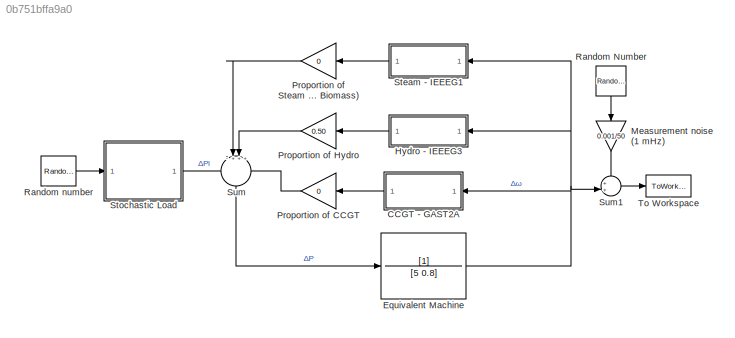
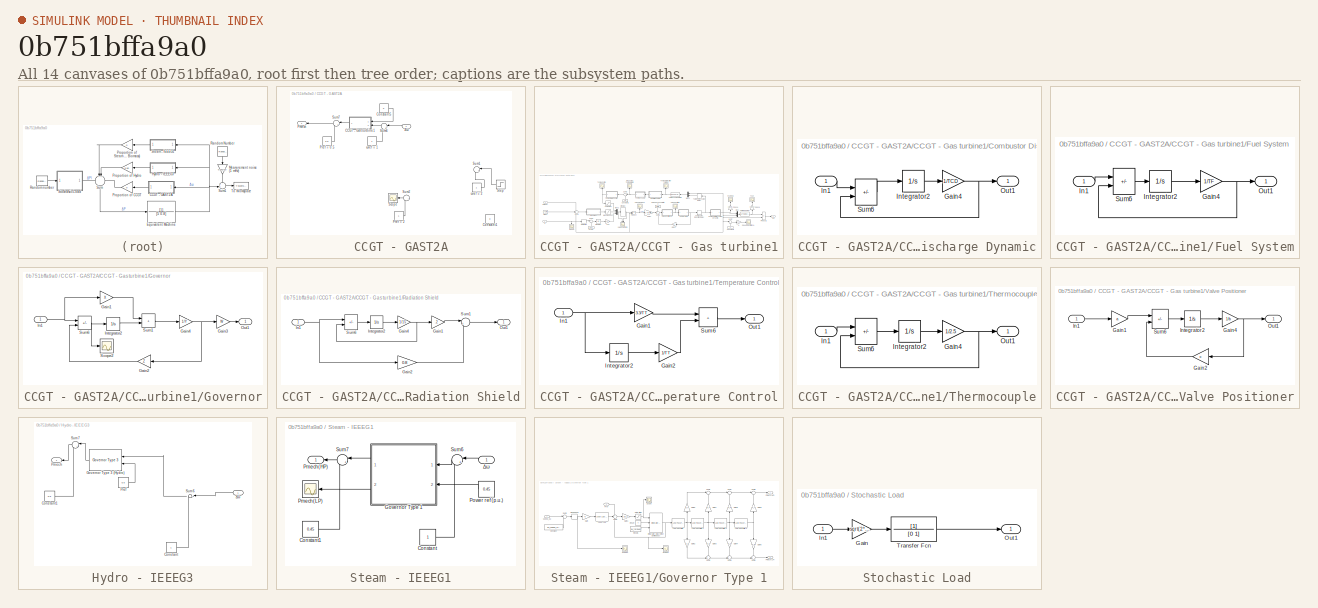
[diagram: thumbnail index - all 14 canvases of the model, root first then tree order]
MODEL slx_0b751bffa9a0
KIND model
CONFIG AbsTol = auto
CONFIG EnableMultiTasking = off
CONFIG FixedStep = auto
CONFIG MaxStep = auto
CONFIG MinStep = auto
CONFIG RelTol = 1e-3
CONFIG SampleTimeConstraint = Unconstrained
CONFIG Solver = VariableStepAuto
CONFIG SolverName = VariableStepAuto
CONFIG StartTime = 0.0
CONFIG StopTime = 3600
BLOCK [SubSystem] CCGT - GAST2A
  Ports = [1, 1]
  RequestExecContextInheritance = off
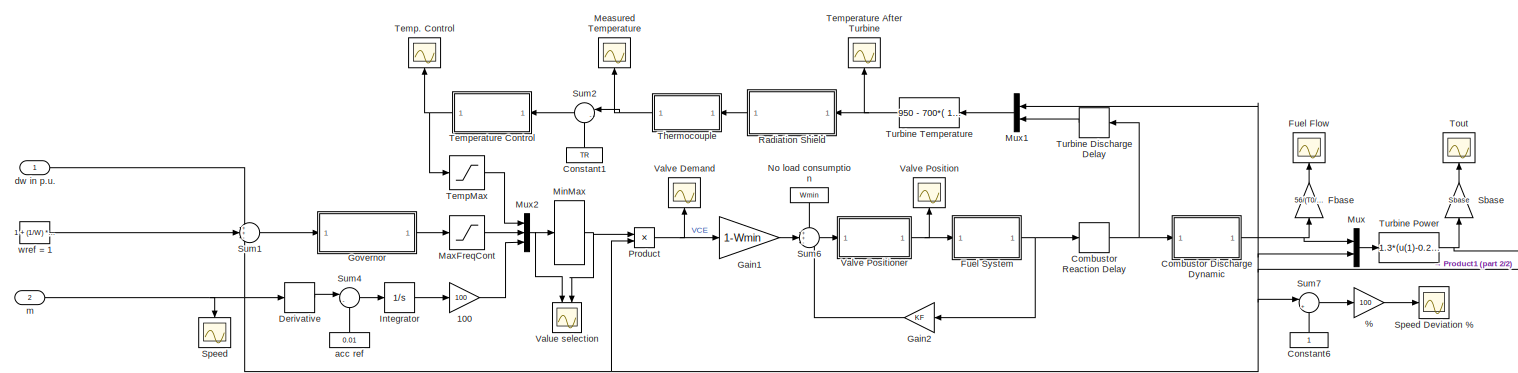
[diagram: CCGT - GAST2A/CCGT - Gas turbine1 - part 1/2, most of the canvas]
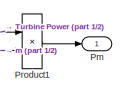
[diagram: CCGT - GAST2A/CCGT - Gas turbine1 - part 2/2, bottom right region]
BLOCK [SubSystem] CCGT - GAST2A/CCGT - Gas turbine1
  NameLocation = top
  Ports = [2, 1]
  RequestExecContextInheritance = off
BLOCK [Gain] CCGT - GAST2A/CCGT - Gas turbine1/%
  Gain = 100
BLOCK [Gain] CCGT - GAST2A/CCGT - Gas turbine1/100
  Gain = 100
BLOCK [SubSystem] CCGT - GAST2A/CCGT - Gas turbine1/Combustor Discharge Dynamic
  Ports = [1, 1]
  RequestExecContextInheritance = off
BLOCK [Gain] CCGT - GAST2A/CCGT - Gas turbine1/Combustor Discharge Dynamic/Gain4
  Gain = 1/TCD
BLOCK [Inport] CCGT - GAST2A/CCGT - Gas turbine1/Combustor Discharge Dynamic/In1
BLOCK [Integrator] CCGT - GAST2A/CCGT - Gas turbine1/Combustor Discharge Dynamic/Integrator2
  InitialCondition = TCD*(T0/1.3+0.23)
  Ports = [1, 1]
BLOCK [Outport] CCGT - GAST2A/CCGT - Gas turbine1/Combustor Discharge Dynamic/Out1
BLOCK [Sum] CCGT - GAST2A/CCGT - Gas turbine1/Combustor Discharge Dynamic/Sum6
  IconShape = rectangular
  Inputs = |+-
  Ports = [2, 1]
BLOCK [TransportDelay] CCGT - GAST2A/CCGT - Gas turbine1/Combustor Reaction Delay
  DelayTime = ECR
  InitialOutput = T0/1.3+0.23
  Ports = [1, 1]
BLOCK [Constant] CCGT - GAST2A/CCGT - Gas turbine1/Constant1
  NameLocation = right
  Value = TR
BLOCK [Constant] CCGT - GAST2A/CCGT - Gas turbine1/Constant6
  NameLocation = right
BLOCK [Derivative] CCGT - GAST2A/CCGT - Gas turbine1/Derivative
BLOCK [Gain] CCGT - GAST2A/CCGT - Gas turbine1/Fbase
  Gain = 56/(T0/1.3+0.23)
  NameLocation = right
BLOCK [Scope] CCGT - GAST2A/CCGT - Gas turbine1/Fuel Flow
  Floating = off
  NameLocation = right
  NumInputPorts = 1
  Ports = [1]
  ScopeSpecificationString = Simulink.scopes.TimeScopeBlockCfg('CurrentConfiguration', extmgr.ConfigurationSet(extmgr.Configuration('Core','General UI',true),extmgr.Configuration('Core','Source UI',true),extmgr.Configuration('Sources','WiredSimulink',true,'DataLogging',true,'DataLoggingVariableName','Fuel','DataLoggingSaveFormat','Array','DataLoggingDecimation','1','DataLoggingDecimateData',true),extmgr.Configuration('Visuals...<+1647ch>
BLOCK [SubSystem] CCGT - GAST2A/CCGT - Gas turbine1/Fuel System
  Ports = [1, 1]
  RequestExecContextInheritance = off
BLOCK [Gain] CCGT - GAST2A/CCGT - Gas turbine1/Fuel System/Gain4
  Gain = 1/TF
BLOCK [Inport] CCGT - GAST2A/CCGT - Gas turbine1/Fuel System/In1
BLOCK [Integrator] CCGT - GAST2A/CCGT - Gas turbine1/Fuel System/Integrator2
  InitialCondition = TF*(T0/1.3+0.23)
  Ports = [1, 1]
BLOCK [Outport] CCGT - GAST2A/CCGT - Gas turbine1/Fuel System/Out1
BLOCK [Sum] CCGT - GAST2A/CCGT - Gas turbine1/Fuel System/Sum6
  IconShape = rectangular
  Inputs = |+-
  Ports = [2, 1]
BLOCK [Gain] CCGT - GAST2A/CCGT - Gas turbine1/Gain1
  Gain = 1-Wmin
BLOCK [Gain] CCGT - GAST2A/CCGT - Gas turbine1/Gain2
  Gain = KF
  NameLocation = top
BLOCK [SubSystem] CCGT - GAST2A/CCGT - Gas turbine1/Governor
  Ports = [1, 1]
  RequestExecContextInheritance = off
BLOCK [Gain] CCGT - GAST2A/CCGT - Gas turbine1/Governor/Gain1
  Gain = X
BLOCK [Gain] CCGT - GAST2A/CCGT - Gas turbine1/Governor/Gain2
  Gain = Z
  NameLocation = top
BLOCK [Gain] CCGT - GAST2A/CCGT - Gas turbine1/Governor/Gain3
  Gain = W
BLOCK [Gain] CCGT - GAST2A/CCGT - Gas turbine1/Governor/Gain4
  Gain = 1/Y
BLOCK [Inport] CCGT - GAST2A/CCGT - Gas turbine1/Governor/In1
BLOCK [Integrator] CCGT - GAST2A/CCGT - Gas turbine1/Governor/Integrator2
  InitialCondition = (Y-Z*X)*(1/W)*(((T0/1.3+0.23)*(c/a)-Wmin)/(1-Wmin))
  Ports = [1, 1]
BLOCK [Outport] CCGT - GAST2A/CCGT - Gas turbine1/Governor/Out1
BLOCK [Scope] CCGT - GAST2A/CCGT - Gas turbine1/Governor/Scope2
  Floating = off
  NumInputPorts = 1
  Ports = [1]
  ScopeSpecificationString = Simulink.scopes.TimeScopeBlockCfg('CurrentConfiguration', extmgr.ConfigurationSet(extmgr.Configuration('Core','General UI',true),extmgr.Configuration('Core','Source UI',true),extmgr.Configuration('Sources','WiredSimulink',true,'DataLoggingVariableName','ScopeData4','DataLoggingSaveFormat','StructureWithTime','DataLoggingLimitDataPoints',true,'DataLoggingDecimation','1','DataLoggingDecimateData',tr...<+1677ch>
BLOCK [Sum] CCGT - GAST2A/CCGT - Gas turbine1/Governor/Sum1
  IconShape = rectangular
  Ports = [2, 1]
BLOCK [Sum] CCGT - GAST2A/CCGT - Gas turbine1/Governor/Sum6
  IconShape = rectangular
  Inputs = +-
  Ports = [2, 1]
BLOCK [Integrator] CCGT - GAST2A/CCGT - Gas turbine1/Integrator
  InitialCondition = 1
  Ports = [1, 1]
BLOCK [Saturate] CCGT - GAST2A/CCGT - Gas turbine1/MaxFreqCont
  LowerLimit = MIN
  UpperLimit = MAX
BLOCK [Scope] CCGT - GAST2A/CCGT - Gas turbine1/Measured Temperature
  Floating = off
  NameLocation = right
  NumInputPorts = 1
  Ports = [1]
  ScopeSpecificationString = Simulink.scopes.TimeScopeBlockCfg('CurrentConfiguration', extmgr.ConfigurationSet(extmgr.Configuration('Core','General UI',true),extmgr.Configuration('Core','Source UI',true),extmgr.Configuration('Sources','WiredSimulink',true,'DataLoggingVariableName','ScopeData7','DataLoggingSaveFormat','StructureWithTime','DataLoggingDecimation','1','DataLoggingDecimateData',true),extmgr.Configuration('Visuals'...<+1727ch>
BLOCK [MinMax] CCGT - GAST2A/CCGT - Gas turbine1/MinMax
  NameLocation = top
  Ports = [1, 1]
BLOCK [Mux] CCGT - GAST2A/CCGT - Gas turbine1/Mux
  DisplayOption = bar
  Inputs = 2
  Ports = [2, 1]
BLOCK [Mux] CCGT - GAST2A/CCGT - Gas turbine1/Mux1
  DisplayOption = bar
  Inputs = 2
  NameLocation = top
  Ports = [2, 1]
BLOCK [Mux] CCGT - GAST2A/CCGT - Gas turbine1/Mux2
  DisplayOption = bar
  Inputs = 3
  Ports = [3, 1]
BLOCK [Constant] CCGT - GAST2A/CCGT - Gas turbine1/No load consumption
  NameLocation = right
  Value = Wmin
BLOCK [Outport] CCGT - GAST2A/CCGT - Gas turbine1/Pm
BLOCK [Product] CCGT - GAST2A/CCGT - Gas turbine1/Product
  Ports = [2, 1]
  RndMeth = Zero
BLOCK [Product] CCGT - GAST2A/CCGT - Gas turbine1/Product1
  Ports = [2, 1]
  RndMeth = Zero
BLOCK [SubSystem] CCGT - GAST2A/CCGT - Gas turbine1/Radiation Shield
  NameLocation = top
  Ports = [1, 1]
  RequestExecContextInheritance = off
BLOCK [Gain] CCGT - GAST2A/CCGT - Gas turbine1/Radiation Shield/Gain1
  Gain = .2
BLOCK [Gain] CCGT - GAST2A/CCGT - Gas turbine1/Radiation Shield/Gain2
  Gain = 0.8
BLOCK [Gain] CCGT - GAST2A/CCGT - Gas turbine1/Radiation Shield/Gain4
  Gain = 1/15
BLOCK [Inport] CCGT - GAST2A/CCGT - Gas turbine1/Radiation Shield/In1
BLOCK [Integrator] CCGT - GAST2A/CCGT - Gas turbine1/Radiation Shield/Integrator2
  InitialCondition = 15*(950-700*(1-T0/1.3-0.23))
  Ports = [1, 1]
BLOCK [Outport] CCGT - GAST2A/CCGT - Gas turbine1/Radiation Shield/Out1
BLOCK [Sum] CCGT - GAST2A/CCGT - Gas turbine1/Radiation Shield/Sum1
  Inputs = |++
  Ports = [2, 1]
BLOCK [Sum] CCGT - GAST2A/CCGT - Gas turbine1/Radiation Shield/Sum6
  IconShape = rectangular
  Inputs = |+-
  Ports = [2, 1]
BLOCK [Gain] CCGT - GAST2A/CCGT - Gas turbine1/Sbase
  Gain = Sbase
  NameLocation = right
BLOCK [Scope] CCGT - GAST2A/CCGT - Gas turbine1/Speed
  Floating = off
  NameLocation = left
  NumInputPorts = 1
  Ports = [1]
  ScopeSpecificationString = Simulink.scopes.TimeScopeBlockCfg('CurrentConfiguration', extmgr.ConfigurationSet(extmgr.Configuration('Core','General UI',true),extmgr.Configuration('Core','Source UI',true),extmgr.Configuration('Sources','WiredSimulink',true,'DataLogging',true,'DataLoggingVariableName','Speed','DataLoggingSaveFormat','Array','DataLoggingDecimation','1','DataLoggingDecimateData',true),extmgr.Configuration('Visual...<+1656ch>
BLOCK [Scope] CCGT - GAST2A/CCGT - Gas turbine1/Speed Deviation %
  Floating = off
  NumInputPorts = 1
  Ports = [1]
  ScopeSpecificationString = Simulink.scopes.TimeScopeBlockCfg('CurrentConfiguration', extmgr.ConfigurationSet(extmgr.Configuration('Core','General UI',true),extmgr.Configuration('Core','Source UI',true),extmgr.Configuration('Sources','WiredSimulink',true,'DataLogging',true,'DataLoggingVariableName','SpeedD','DataLoggingSaveFormat','Array','DataLoggingDecimation','1','DataLoggingDecimateData',true),extmgr.Configuration('Visua...<+1642ch>
BLOCK [Sum] CCGT - GAST2A/CCGT - Gas turbine1/Sum1
  Inputs = ++-
  Ports = [3, 1]
BLOCK [Sum] CCGT - GAST2A/CCGT - Gas turbine1/Sum2
  Inputs = |-+
  NameLocation = top
  Ports = [2, 1]
BLOCK [Sum] CCGT - GAST2A/CCGT - Gas turbine1/Sum4
  Inputs = |-+
  Ports = [2, 1]
BLOCK [Sum] CCGT - GAST2A/CCGT - Gas turbine1/Sum6
  Inputs = ++-
  Ports = [3, 1]
BLOCK [Sum] CCGT - GAST2A/CCGT - Gas turbine1/Sum7
  Inputs = |+-
  Ports = [2, 1]
BLOCK [Scope] CCGT - GAST2A/CCGT - Gas turbine1/Temp. Control
  Floating = off
  NameLocation = right
  NumInputPorts = 1
  Ports = [1]
  ScopeSpecificationString = Simulink.scopes.TimeScopeBlockCfg('CurrentConfiguration', extmgr.ConfigurationSet(extmgr.Configuration('Core','General UI',true),extmgr.Configuration('Core','Source UI',true),extmgr.Configuration('Sources','WiredSimulink',true,'DataLoggingVariableName','ScopeData5','DataLoggingSaveFormat','StructureWithTime','DataLoggingDecimation','1','DataLoggingDecimateData',true),extmgr.Configuration('Visuals'...<+1736ch>
BLOCK [Saturate] CCGT - GAST2A/CCGT - Gas turbine1/TempMax
  LowerLimit = MIN
  UpperLimit = MAX
BLOCK [Scope] CCGT - GAST2A/CCGT - Gas turbine1/Temperature After Turbine
  Floating = off
  NameLocation = right
  NumInputPorts = 1
  Ports = [1]
  ScopeSpecificationString = Simulink.scopes.TimeScopeBlockCfg('CurrentConfiguration', extmgr.ConfigurationSet(extmgr.Configuration('Core','General UI',true),extmgr.Configuration('Core','Source UI',true),extmgr.Configuration('Sources','WiredSimulink',true,'DataLogging',true,'DataLoggingVariableName','Temp','DataLoggingSaveFormat','Array','DataLoggingDecimation','1','DataLoggingDecimateData',true),extmgr.Configuration('Visuals...<+1739ch>
BLOCK [SubSystem] CCGT - GAST2A/CCGT - Gas turbine1/Temperature Control
  NameLocation = top
  Ports = [1, 1]
  RequestExecContextInheritance = off
BLOCK [Gain] CCGT - GAST2A/CCGT - Gas turbine1/Temperature Control/Gain1
  Gain = 3.3/TT
BLOCK [Gain] CCGT - GAST2A/CCGT - Gas turbine1/Temperature Control/Gain2
  Gain = 1/TT
BLOCK [Inport] CCGT - GAST2A/CCGT - Gas turbine1/Temperature Control/In1
BLOCK [Integrator] CCGT - GAST2A/CCGT - Gas turbine1/Temperature Control/Integrator2
  InitialCondition = 950
  Ports = [1, 1]
BLOCK [Outport] CCGT - GAST2A/CCGT - Gas turbine1/Temperature Control/Out1
BLOCK [Sum] CCGT - GAST2A/CCGT - Gas turbine1/Temperature Control/Sum6
  IconShape = rectangular
  Ports = [2, 1]
BLOCK [SubSystem] CCGT - GAST2A/CCGT - Gas turbine1/Thermocouple
  NameLocation = top
  Ports = [1, 1]
  RequestExecContextInheritance = off
BLOCK [Gain] CCGT - GAST2A/CCGT - Gas turbine1/Thermocouple/Gain4
  Gain = 1/2.5
BLOCK [Inport] CCGT - GAST2A/CCGT - Gas turbine1/Thermocouple/In1
BLOCK [Integrator] CCGT - GAST2A/CCGT - Gas turbine1/Thermocouple/Integrator2
  InitialCondition = 2.5*((950-700*(1-T0/1.3-0.23)))
  Ports = [1, 1]
BLOCK [Outport] CCGT - GAST2A/CCGT - Gas turbine1/Thermocouple/Out1
BLOCK [Sum] CCGT - GAST2A/CCGT - Gas turbine1/Thermocouple/Sum6
  IconShape = rectangular
  Inputs = |+-
  Ports = [2, 1]
BLOCK [Scope] CCGT - GAST2A/CCGT - Gas turbine1/Tout
  Floating = off
  NameLocation = right
  NumInputPorts = 1
  Ports = [1]
  ScopeSpecificationString = Simulink.scopes.TimeScopeBlockCfg('CurrentConfiguration', extmgr.ConfigurationSet(extmgr.Configuration('Core','General UI',true),extmgr.Configuration('Core','Source UI',true),extmgr.Configuration('Sources','WiredSimulink',true,'DataLogging',true,'DataLoggingVariableName','Tout','DataLoggingSaveFormat','Array','DataLoggingDecimation','1','DataLoggingDecimateData',true),extmgr.Configuration('Visuals...<+1662ch>
BLOCK [TransportDelay] CCGT - GAST2A/CCGT - Gas turbine1/Turbine Discharge Delay
  DelayTime = ETD
  InitialOutput = T0/1.3+0.23
  Ports = [1, 1]
BLOCK [Fcn] CCGT - GAST2A/CCGT - Gas turbine1/Turbine Power
  Expr = 1.3*(u(1)-0.23) + 0.5*(1-u(2))
  NameLocation = top
BLOCK [Fcn] CCGT - GAST2A/CCGT - Gas turbine1/Turbine Temperature
  Expr = 950 - 700*( 1-u(2)) + 550*(1-u(1) )
  NameLocation = top
BLOCK [Scope] CCGT - GAST2A/CCGT - Gas turbine1/Value selection
  Floating = off
  NameLocation = left
  NumInputPorts = 2
  Ports = [2]
  ScopeSpecificationString = Simulink.scopes.TimeScopeBlockCfg('CurrentConfiguration', extmgr.ConfigurationSet(extmgr.Configuration('Core','General UI',true),extmgr.Configuration('Core','Source UI',true),extmgr.Configuration('Sources','WiredSimulink',true,'DataLoggingVariableName','ScopeData6','DataLoggingSaveFormat','Array','DataLoggingDecimation','1','DataLoggingDecimateData',true),extmgr.Configuration('Visuals','Time Domai...<+2376ch>
BLOCK [Scope] CCGT - GAST2A/CCGT - Gas turbine1/Valve Demand
  Floating = off
  NameLocation = right
  NumInputPorts = 1
  Ports = [1]
  ScopeSpecificationString = Simulink.scopes.TimeScopeBlockCfg('CurrentConfiguration', extmgr.ConfigurationSet(extmgr.Configuration('Core','General UI',true),extmgr.Configuration('Core','Source UI',true),extmgr.Configuration('Sources','WiredSimulink',true,'DataLogging',true,'DataLoggingVariableName','ValvD','DataLoggingSaveFormat','Array','DataLoggingDecimation','1','DataLoggingDecimateData',true),extmgr.Configuration('Visual...<+1708ch>
BLOCK [Scope] CCGT - GAST2A/CCGT - Gas turbine1/Valve Position
  Floating = off
  NameLocation = right
  NumInputPorts = 1
  Ports = [1]
  ScopeSpecificationString = Simulink.scopes.TimeScopeBlockCfg('CurrentConfiguration', extmgr.ConfigurationSet(extmgr.Configuration('Core','General UI',true),extmgr.Configuration('Core','Source UI',true),extmgr.Configuration('Sources','WiredSimulink',true,'DataLogging',true,'DataLoggingVariableName','Valv','DataLoggingSaveFormat','Array','DataLoggingDecimation','1','DataLoggingDecimateData',true),extmgr.Configuration('Visuals...<+1654ch>
BLOCK [SubSystem] CCGT - GAST2A/CCGT - Gas turbine1/Valve Positioner
  Ports = [1, 1]
  RequestExecContextInheritance = off
BLOCK [Gain] CCGT - GAST2A/CCGT - Gas turbine1/Valve Positioner/Gain1
  Gain = a
BLOCK [Gain] CCGT - GAST2A/CCGT - Gas turbine1/Valve Positioner/Gain2
  Gain = c
  NameLocation = top
BLOCK [Gain] CCGT - GAST2A/CCGT - Gas turbine1/Valve Positioner/Gain4
  Gain = 1/b
BLOCK [Inport] CCGT - GAST2A/CCGT - Gas turbine1/Valve Positioner/In1
BLOCK [Integrator] CCGT - GAST2A/CCGT - Gas turbine1/Valve Positioner/Integrator2
  InitialCondition = b*(T0/1.3+0.23)
  Ports = [1, 1]
BLOCK [Outport] CCGT - GAST2A/CCGT - Gas turbine1/Valve Positioner/Out1
BLOCK [Sum] CCGT - GAST2A/CCGT - Gas turbine1/Valve Positioner/Sum6
  IconShape = rectangular
  Inputs = |+-
  Ports = [2, 1]
BLOCK [Constant] CCGT - GAST2A/CCGT - Gas turbine1/acc ref
  NameLocation = right
  Value = 0.01
BLOCK [Inport] CCGT - GAST2A/CCGT - Gas turbine1/dw in p.u.
BLOCK [Inport] CCGT - GAST2A/CCGT - Gas turbine1/m
  Port = 2
BLOCK [Constant] CCGT - GAST2A/CCGT - Gas turbine1/wref = 1
  Value = 1 + (1/W) * ( ( (T0/1.3 + 0.23)*(c/a) - Wmin) / (1-Wmin) )*Z
BLOCK [Constant] CCGT - GAST2A/Constant1
  Value = 0
BLOCK [Constant] CCGT - GAST2A/Constant5
  Value = 0
BLOCK [Outport] CCGT - GAST2A/Pmech
BLOCK [Constant] CCGT - GAST2A/Pref = 0.5
  Value = 0.5
BLOCK [Constant] CCGT - GAST2A/Pref = 2
BLOCK [Scope] CCGT - GAST2A/Scope
  Floating = off
  NumInputPorts = 1
  Ports = [1]
  ScopeSpecificationString = Simulink.scopes.TimeScopeBlockCfg('CurrentConfiguration', extmgr.ConfigurationSet(extmgr.Configuration('Core','General UI',true),extmgr.Configuration('Core','Source UI',true),extmgr.Configuration('Sources','WiredSimulink',true,'DataLoggingVariableName','ScopeData1'),extmgr.Configuration('Visuals','Time Domain',true,'SerializedDisplays',{struct('MinYLimReal','-1.2088','MaxYLimReal','-0.9768','YLabe...<+1466ch>
BLOCK [Step] CCGT - GAST2A/Step
  After = +0.01
  SampleTime = 0
BLOCK [Sum] CCGT - GAST2A/Sum1
  Inputs = |++
  Ports = [2, 1]
BLOCK [Sum] CCGT - GAST2A/Sum2
  Inputs = |+-
  Ports = [2, 1]
BLOCK [Sum] CCGT - GAST2A/Sum6
  Inputs = |++
  Ports = [2, 1]
BLOCK [Sum] CCGT - GAST2A/Sum7
  Inputs = |+-
  Ports = [2, 1]
BLOCK [Inport] CCGT - GAST2A/Δω
BLOCK [Constant] CCGT - GAST2A/ωref = 1
BLOCK [Constant] CCGT - GAST2A/ωref = 2
BLOCK [TransferFcn] Equivalent Machine
  Denominator = [5 0.8]
BLOCK [SubSystem] Hydro - IEEEG3
  Ports = [1, 1]
  RequestExecContextInheritance = off
BLOCK [Constant] Hydro - IEEEG3/Constant
BLOCK [Constant] Hydro - IEEEG3/Constant1
  Value = 0.5
BLOCK [Reference] Hydro - IEEEG3/Governor Type 3 (Hydro)  REF=eeGovernorG3/Governor Type 3
  Ports = [2, 1]
  SourceBlock = eeGovernorG3/Governor Type 3
  SourceProductBaseCode = PS
  SourceType = Governor Type 3
BLOCK [Outport] Hydro - IEEEG3/Pmech
BLOCK [Constant] Hydro - IEEEG3/Pref
  Value = 0.5
BLOCK [Sum] Hydro - IEEEG3/Sum6
  Inputs = |++
  Ports = [2, 1]
BLOCK [Sum] Hydro - IEEEG3/Sum7
  Inputs = |+-
  Ports = [2, 1]
BLOCK [Inport] Hydro - IEEEG3/Δω
BLOCK [Gain] Measurement noise (1 mHz)
  Gain = 0.001/50
  NameLocation = right
BLOCK [Gain] Proportion of CCGT
  Gain = 0
BLOCK [Gain] Proportion of Hydro
  Gain = 0.50
BLOCK [Gain] Proportion of Steam (Nuclear + Biomass)
  Gain = 0
BLOCK [RandomNumber] Random Number
  NameLocation = right
  SampleTime = 0.1
BLOCK [RandomNumber] Random number
  SampleTime = 0.1
BLOCK [SubSystem] Steam - IEEEG1
  Ports = [1, 1]
  RequestExecContextInheritance = off
BLOCK [Constant] Steam - IEEEG1/Constant
BLOCK [Constant] Steam - IEEEG1/Constant1
  Value = 0.45
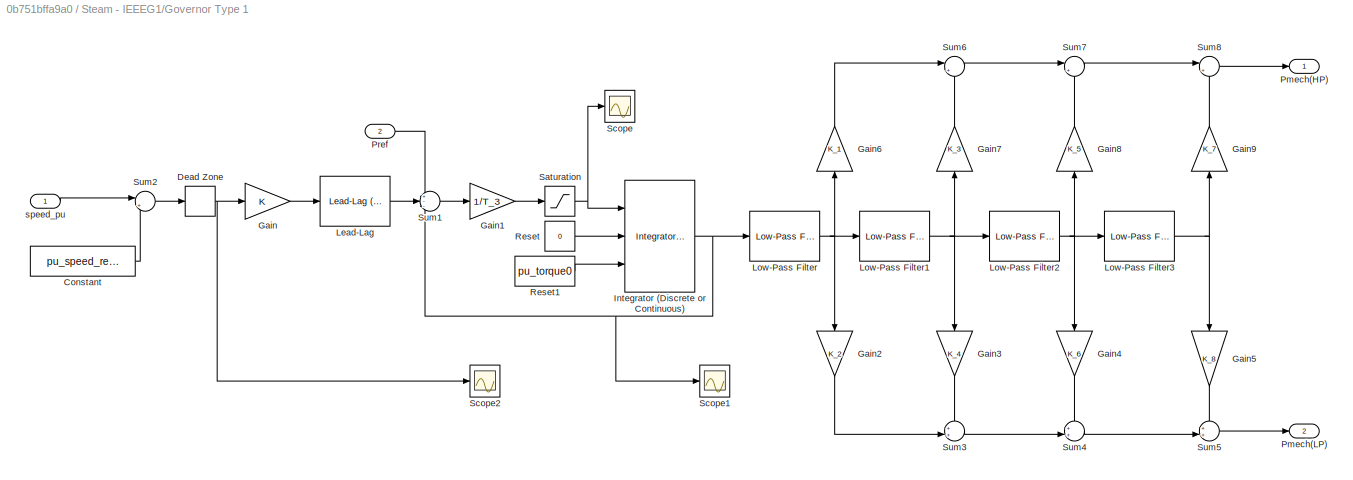
BLOCK [SubSystem] Steam - IEEEG1/Governor Type 1
  AncestorBlock = eeGovernorG1/Governor Type 1
  CloseFcn = ee_sli_rtmsupport( 'closefcn', gcbh );
  CopyFcn = ee_sli_rtmsupport( 'copyfcn', gcbh );
  DeleteFcn = ee_sli_rtmsupport( 'deletefcn', gcbh );
  LoadFcn = ee_sli_rtmsupport( 'loadfcn', gcbh );
  ModelCloseFcn = ee_sli_rtmsupport( 'modelclosefcn', gcbh );
  OpenFcn = ee_sli_rtmsupport( 'openfcn', gcbh );
  Ports = [2, 2]
  PostSaveFcn = ee_sli_rtmsupport( 'postsavefcn', gcbh );
  PreCopyFcn = ee_sli_rtmsupport( 'precopyfcn', gcbh );
  PreDeleteFcn = ee_sli_rtmsupport( 'predeletefcn', gcbh );
  RequestExecContextInheritance = off
BLOCK [Constant] Steam - IEEEG1/Governor Type 1/Constant
  Value = pu_speed_reference
BLOCK [DeadZone] Steam - IEEEG1/Governor Type 1/Dead Zone
  LowerValue = -db1
  UpperValue = db1
  ZeroCross = off
BLOCK [Gain] Steam - IEEEG1/Governor Type 1/Gain
  Gain = K
BLOCK [Gain] Steam - IEEEG1/Governor Type 1/Gain1
  Gain = 1/T_3
BLOCK [Gain] Steam - IEEEG1/Governor Type 1/Gain2
  Gain = K_2
  NameLocation = left
BLOCK [Gain] Steam - IEEEG1/Governor Type 1/Gain3
  Gain = K_4
  NameLocation = left
BLOCK [Gain] Steam - IEEEG1/Governor Type 1/Gain4
  Gain = K_6
  NameLocation = left
BLOCK [Gain] Steam - IEEEG1/Governor Type 1/Gain5
  Gain = K_8
  NameLocation = left
BLOCK [Gain] Steam - IEEEG1/Governor Type 1/Gain6
  Gain = K_1
  NameLocation = left
BLOCK [Gain] Steam - IEEEG1/Governor Type 1/Gain7
  Gain = K_3
  NameLocation = left
BLOCK [Gain] Steam - IEEEG1/Governor Type 1/Gain8
  Gain = K_5
  NameLocation = left
BLOCK [Gain] Steam - IEEEG1/Governor Type 1/Gain9
  Gain = K_7
  NameLocation = left
BLOCK [Reference] Steam - IEEEG1/Governor Type 1/Integrator (Discrete or Continuous)  REF=eeGeneralControl/Integrator
(Discrete or Continuous)
  Ports = [3, 1]
  SourceBlock = eeGeneralControl/Integrator\n(Discrete or Continuous)
  SourceProductBaseCode = PS
  SourceType = Integrator (Discrete or Continuous)
BLOCK [Reference] Steam - IEEEG1/Governor Type 1/Lead-Lag  REF=eeGeneralControl/Lead-Lag
(Discrete or Continuous)
  Ports = [1, 1]
  SourceBlock = eeGeneralControl/Lead-Lag\n(Discrete or Continuous)
  SourceProductBaseCode = PS
  SourceType = Lead-Lag (Discrete or Continuous)
BLOCK [Reference] Steam - IEEEG1/Governor Type 1/Low-Pass Filter  REF=eeGeneralControl/Low-Pass Filter
(Discrete or Continuous)
  Ports = [1, 1]
  SourceBlock = eeGeneralControl/Low-Pass Filter\n(Discrete or Continuous)
  SourceProductBaseCode = PS
  SourceType = Low-Pass Filter (Discrete or Continuous)
BLOCK [Reference] Steam - IEEEG1/Governor Type 1/Low-Pass Filter1  REF=eeGeneralControl/Low-Pass Filter
(Discrete or Continuous)
  Ports = [1, 1]
  SourceBlock = eeGeneralControl/Low-Pass Filter\n(Discrete or Continuous)
  SourceProductBaseCode = PS
  SourceType = Low-Pass Filter (Discrete or Continuous)
BLOCK [Reference] Steam - IEEEG1/Governor Type 1/Low-Pass Filter2  REF=eeGeneralControl/Low-Pass Filter
(Discrete or Continuous)
  Ports = [1, 1]
  SourceBlock = eeGeneralControl/Low-Pass Filter\n(Discrete or Continuous)
  SourceProductBaseCode = PS
  SourceType = Low-Pass Filter (Discrete or Continuous)
BLOCK [Reference] Steam - IEEEG1/Governor Type 1/Low-Pass Filter3  REF=eeGeneralControl/Low-Pass Filter
(Discrete or Continuous)
  Ports = [1, 1]
  SourceBlock = eeGeneralControl/Low-Pass Filter\n(Discrete or Continuous)
  SourceProductBaseCode = PS
  SourceType = Low-Pass Filter (Discrete or Continuous)
BLOCK [Outport] Steam - IEEEG1/Governor Type 1/Pmech(HP)
  VectorParamsAs1DForOutWhenUnconnected = off
BLOCK [Outport] Steam - IEEEG1/Governor Type 1/Pmech(LP)
  Port = 2
  VectorParamsAs1DForOutWhenUnconnected = off
BLOCK [Inport] Steam - IEEEG1/Governor Type 1/Pref
  Port = 2
  SampleTime = Ts
BLOCK [Constant] Steam - IEEEG1/Governor Type 1/Reset
  Value = 0
BLOCK [Constant] Steam - IEEEG1/Governor Type 1/Reset1
  Value = pu_torque0
BLOCK [Saturate] Steam - IEEEG1/Governor Type 1/Saturation
  LowerLimit = U_c
  UpperLimit = U_o
BLOCK [Scope] Steam - IEEEG1/Governor Type 1/Scope
  Floating = off
  NumInputPorts = 1
  Ports = [1]
  ScopeSpecificationString = Simulink.scopes.TimeScopeBlockCfg('CurrentConfiguration', extmgr.ConfigurationSet(extmgr.Configuration('Core','General UI',true),extmgr.Configuration('Core','Source UI',true),extmgr.Configuration('Sources','WiredSimulink',true,'DataLoggingVariableName','ScopeData2'),extmgr.Configuration('Visuals','Time Domain',true,'SerializedDisplays',{struct('MinYLimReal','-1.25','MaxYLimReal','1.25','YLabelReal...<+1459ch>
BLOCK [Scope] Steam - IEEEG1/Governor Type 1/Scope1
  Floating = off
  NumInputPorts = 1
  Ports = [1]
  ScopeSpecificationString = Simulink.scopes.TimeScopeBlockCfg('CurrentConfiguration', extmgr.ConfigurationSet(extmgr.Configuration('Core','General UI',true),extmgr.Configuration('Core','Source UI',true),extmgr.Configuration('Sources','WiredSimulink',true,'DataLoggingVariableName','ScopeData3'),extmgr.Configuration('Visuals','Time Domain',true,'SerializedDisplays',{struct('MinYLimReal','-0.1225','MaxYLimReal','1.1025','YLabel...<+1460ch>
BLOCK [Scope] Steam - IEEEG1/Governor Type 1/Scope2
  Floating = off
  NumInputPorts = 1
  Ports = [1]
  ScopeSpecificationString = Simulink.scopes.TimeScopeBlockCfg('CurrentConfiguration', extmgr.ConfigurationSet(extmgr.Configuration('Core','General UI',true),extmgr.Configuration('Core','Source UI',true),extmgr.Configuration('Sources','WiredSimulink',true,'DataLoggingVariableName','ScopeData2'),extmgr.Configuration('Visuals','Time Domain',true,'SerializedDisplays',{struct('MinYLimReal','-0.03597','MaxYLimReal','0.05568','YLab...<+1476ch>
BLOCK [Sum] Steam - IEEEG1/Governor Type 1/Sum1
  Inputs = +--
  Ports = [3, 1]
BLOCK [Sum] Steam - IEEEG1/Governor Type 1/Sum2
  Inputs = |+-
  Ports = [2, 1]
BLOCK [Sum] Steam - IEEEG1/Governor Type 1/Sum3
  Inputs = ++|
  Ports = [2, 1]
BLOCK [Sum] Steam - IEEEG1/Governor Type 1/Sum4
  Inputs = ++|
  Ports = [2, 1]
BLOCK [Sum] Steam - IEEEG1/Governor Type 1/Sum5
  Inputs = ++|
  Ports = [2, 1]
BLOCK [Sum] Steam - IEEEG1/Governor Type 1/Sum6
  Inputs = |++
  Ports = [2, 1]
BLOCK [Sum] Steam - IEEEG1/Governor Type 1/Sum7
  Inputs = |++
  Ports = [2, 1]
BLOCK [Sum] Steam - IEEEG1/Governor Type 1/Sum8
  Inputs = |++
  Ports = [2, 1]
BLOCK [Inport] Steam - IEEEG1/Governor Type 1/speed_pu
  SampleTime = Ts
BLOCK [Outport] Steam - IEEEG1/Pmech(HP)
BLOCK [Scope] Steam - IEEEG1/Pmech(LP)
  Floating = off
  NumInputPorts = 1
  Ports = [1]
  ScopeSpecificationString = Simulink.scopes.TimeScopeBlockCfg('CurrentConfiguration', extmgr.ConfigurationSet(extmgr.Configuration('Core','General UI',true),extmgr.Configuration('Core','Source UI',true),extmgr.Configuration('Sources','WiredSimulink',true,'DataLoggingVariableName','ScopeData2'),extmgr.Configuration('Visuals','Time Domain',true),extmgr.Configuration('Tools','Plot Navigation',true),extmgr.Configuration('Tools',...<+40ch>
BLOCK [Constant] Steam - IEEEG1/Power ref (p.u.)
  Value = 0.45
BLOCK [Sum] Steam - IEEEG1/Sum6
  Inputs = |++
  Ports = [2, 1]
BLOCK [Sum] Steam - IEEEG1/Sum7
  Inputs = |+-
  Ports = [2, 1]
BLOCK [Inport] Steam - IEEEG1/Δω
BLOCK [SubSystem] Stochastic Load
  Ports = [1, 1]
  RequestExecContextInheritance = off
BLOCK [Gain] Stochastic Load/Gain
  Gain = sqrt(2*6e-6)*100
BLOCK [Inport] Stochastic Load/In1
BLOCK [Outport] Stochastic Load/Out1
BLOCK [TransferFcn] Stochastic Load/Transfer Fcn
  Denominator = [0 1]
BLOCK [Sum] Sum
  Inputs = -+++
  NameLocation = left
  Ports = [4, 1]
BLOCK [Sum] Sum1
  Inputs = ++|
  NameLocation = top
  Ports = [2, 1]
BLOCK [ToWorkspace] To Workspace
  FixptAsFi = on
  MaxDataPoints = inf
  Ports = [1]
  SampleTime = 1
  SaveFormat = Timeseries
  VariableName = dw
LINE CCGT - GAST2A/CCGT - Gas turbine1/%:1 -> CCGT - GAST2A/CCGT - Gas turbine1/Speed Deviation %:1
LINE CCGT - GAST2A/CCGT - Gas turbine1/100:1 -> CCGT - GAST2A/CCGT - Gas turbine1/Mux2:3
NET CCGT - GAST2A/CCGT - Gas turbine1/Combustor Discharge Dynamic/Gain4:1 -> CCGT - GAST2A/CCGT - Gas turbine1/Combustor Discharge Dynamic/Out1:1, CCGT - GAST2A/CCGT - Gas turbine1/Combustor Discharge Dynamic/Sum6:2
LINE CCGT - GAST2A/CCGT - Gas turbine1/Combustor Discharge Dynamic/In1:1 -> CCGT - GAST2A/CCGT - Gas turbine1/Combustor Discharge Dynamic/Sum6:1
LINE CCGT - GAST2A/CCGT - Gas turbine1/Combustor Discharge Dynamic/Integrator2:1 -> CCGT - GAST2A/CCGT - Gas turbine1/Combustor Discharge Dynamic/Gain4:1
LINE CCGT - GAST2A/CCGT - Gas turbine1/Combustor Discharge Dynamic/Sum6:1 -> CCGT - GAST2A/CCGT - Gas turbine1/Combustor Discharge Dynamic/Integrator2:1
NET CCGT - GAST2A/CCGT - Gas turbine1/Combustor Discharge Dynamic:1 -> CCGT - GAST2A/CCGT - Gas turbine1/Fbase:1, CCGT - GAST2A/CCGT - Gas turbine1/Mux:1
NET CCGT - GAST2A/CCGT - Gas turbine1/Combustor Reaction Delay:1 -> CCGT - GAST2A/CCGT - Gas turbine1/Combustor Discharge Dynamic:1, CCGT - GAST2A/CCGT - Gas turbine1/Turbine Discharge Delay:1
LINE CCGT - GAST2A/CCGT - Gas turbine1/Constant1:1 -> CCGT - GAST2A/CCGT - Gas turbine1/Sum2:2
LINE CCGT - GAST2A/CCGT - Gas turbine1/Constant6:1 -> CCGT - GAST2A/CCGT - Gas turbine1/Sum7:2
LINE CCGT - GAST2A/CCGT - Gas turbine1/Derivative:1 -> CCGT - GAST2A/CCGT - Gas turbine1/Sum4:1
LINE CCGT - GAST2A/CCGT - Gas turbine1/Fbase:1 -> CCGT - GAST2A/CCGT - Gas turbine1/Fuel Flow:1
NET CCGT - GAST2A/CCGT - Gas turbine1/Fuel System/Gain4:1 -> CCGT - GAST2A/CCGT - Gas turbine1/Fuel System/Out1:1, CCGT - GAST2A/CCGT - Gas turbine1/Fuel System/Sum6:2
LINE CCGT - GAST2A/CCGT - Gas turbine1/Fuel System/In1:1 -> CCGT - GAST2A/CCGT - Gas turbine1/Fuel System/Sum6:1
LINE CCGT - GAST2A/CCGT - Gas turbine1/Fuel System/Integrator2:1 -> CCGT - GAST2A/CCGT - Gas turbine1/Fuel System/Gain4:1
LINE CCGT - GAST2A/CCGT - Gas turbine1/Fuel System/Sum6:1 -> CCGT - GAST2A/CCGT - Gas turbine1/Fuel System/Integrator2:1
NET CCGT - GAST2A/CCGT - Gas turbine1/Fuel System:1 -> CCGT - GAST2A/CCGT - Gas turbine1/Combustor Reaction Delay:1, CCGT - GAST2A/CCGT - Gas turbine1/Gain2:1
LINE CCGT - GAST2A/CCGT - Gas turbine1/Gain1:1 -> CCGT - GAST2A/CCGT - Gas turbine1/Sum6:2
LINE CCGT - GAST2A/CCGT - Gas turbine1/Gain2:1 -> CCGT - GAST2A/CCGT - Gas turbine1/Sum6:3
LINE CCGT - GAST2A/CCGT - Gas turbine1/Governor/Gain1:1 -> CCGT - GAST2A/CCGT - Gas turbine1/Governor/Sum1:1
LINE CCGT - GAST2A/CCGT - Gas turbine1/Governor/Gain2:1 -> CCGT - GAST2A/CCGT - Gas turbine1/Governor/Sum6:2
LINE CCGT - GAST2A/CCGT - Gas turbine1/Governor/Gain3:1 -> CCGT - GAST2A/CCGT - Gas turbine1/Governor/Out1:1
NET CCGT - GAST2A/CCGT - Gas turbine1/Governor/Gain4:1 -> CCGT - GAST2A/CCGT - Gas turbine1/Governor/Gain2:1, CCGT - GAST2A/CCGT - Gas turbine1/Governor/Gain3:1
NET CCGT - GAST2A/CCGT - Gas turbine1/Governor/In1:1 -> CCGT - GAST2A/CCGT - Gas turbine1/Governor/Gain1:1, CCGT - GAST2A/CCGT - Gas turbine1/Governor/Sum6:1
LINE CCGT - GAST2A/CCGT - Gas turbine1/Governor/Integrator2:1 -> CCGT - GAST2A/CCGT - Gas turbine1/Governor/Sum1:2
LINE CCGT - GAST2A/CCGT - Gas turbine1/Governor/Sum1:1 -> CCGT - GAST2A/CCGT - Gas turbine1/Governor/Gain4:1
NET CCGT - GAST2A/CCGT - Gas turbine1/Governor/Sum6:1 -> CCGT - GAST2A/CCGT - Gas turbine1/Governor/Integrator2:1, CCGT - GAST2A/CCGT - Gas turbine1/Governor/Scope2:1
LINE CCGT - GAST2A/CCGT - Gas turbine1/Governor:1 -> CCGT - GAST2A/CCGT - Gas turbine1/MaxFreqCont:1
LINE CCGT - GAST2A/CCGT - Gas turbine1/Integrator:1 -> CCGT - GAST2A/CCGT - Gas turbine1/100:1
LINE CCGT - GAST2A/CCGT - Gas turbine1/MaxFreqCont:1 -> CCGT - GAST2A/CCGT - Gas turbine1/Mux2:2
NET CCGT - GAST2A/CCGT - Gas turbine1/MinMax:1 -> CCGT - GAST2A/CCGT - Gas turbine1/Product:1, CCGT - GAST2A/CCGT - Gas turbine1/Value selection:2
LINE CCGT - GAST2A/CCGT - Gas turbine1/Mux1:1 -> CCGT - GAST2A/CCGT - Gas turbine1/Turbine Temperature:1
NET CCGT - GAST2A/CCGT - Gas turbine1/Mux2:1 -> CCGT - GAST2A/CCGT - Gas turbine1/MinMax:1, CCGT - GAST2A/CCGT - Gas turbine1/Value selection:1
LINE CCGT - GAST2A/CCGT - Gas turbine1/Mux:1 -> CCGT - GAST2A/CCGT - Gas turbine1/Turbine Power:1
LINE CCGT - GAST2A/CCGT - Gas turbine1/No load consumption:1 -> CCGT - GAST2A/CCGT - Gas turbine1/Sum6:1
LINE CCGT - GAST2A/CCGT - Gas turbine1/Product1:1 -> CCGT - GAST2A/CCGT - Gas turbine1/Pm:1
NET CCGT - GAST2A/CCGT - Gas turbine1/Product:1 -> CCGT - GAST2A/CCGT - Gas turbine1/Gain1:1, CCGT - GAST2A/CCGT - Gas turbine1/Valve Demand:1
LINE CCGT - GAST2A/CCGT - Gas turbine1/Radiation Shield/Gain1:1 -> CCGT - GAST2A/CCGT - Gas turbine1/Radiation Shield/Sum1:1
LINE CCGT - GAST2A/CCGT - Gas turbine1/Radiation Shield/Gain2:1 -> CCGT - GAST2A/CCGT - Gas turbine1/Radiation Shield/Sum1:2
NET CCGT - GAST2A/CCGT - Gas turbine1/Radiation Shield/Gain4:1 -> CCGT - GAST2A/CCGT - Gas turbine1/Radiation Shield/Gain1:1, CCGT - GAST2A/CCGT - Gas turbine1/Radiation Shield/Sum6:2
NET CCGT - GAST2A/CCGT - Gas turbine1/Radiation Shield/In1:1 -> CCGT - GAST2A/CCGT - Gas turbine1/Radiation Shield/Gain2:1, CCGT - GAST2A/CCGT - Gas turbine1/Radiation Shield/Sum6:1
LINE CCGT - GAST2A/CCGT - Gas turbine1/Radiation Shield/Integrator2:1 -> CCGT - GAST2A/CCGT - Gas turbine1/Radiation Shield/Gain4:1
LINE CCGT - GAST2A/CCGT - Gas turbine1/Radiation Shield/Sum1:1 -> CCGT - GAST2A/CCGT - Gas turbine1/Radiation Shield/Out1:1
LINE CCGT - GAST2A/CCGT - Gas turbine1/Radiation Shield/Sum6:1 -> CCGT - GAST2A/CCGT - Gas turbine1/Radiation Shield/Integrator2:1
LINE CCGT - GAST2A/CCGT - Gas turbine1/Radiation Shield:1 -> CCGT - GAST2A/CCGT - Gas turbine1/Thermocouple:1
LINE CCGT - GAST2A/CCGT - Gas turbine1/Sbase:1 -> CCGT - GAST2A/CCGT - Gas turbine1/Tout:1
LINE CCGT - GAST2A/CCGT - Gas turbine1/Sum1:1 -> CCGT - GAST2A/CCGT - Gas turbine1/Governor:1
LINE CCGT - GAST2A/CCGT - Gas turbine1/Sum2:1 -> CCGT - GAST2A/CCGT - Gas turbine1/Temperature Control:1
LINE CCGT - GAST2A/CCGT - Gas turbine1/Sum4:1 -> CCGT - GAST2A/CCGT - Gas turbine1/Integrator:1
LINE CCGT - GAST2A/CCGT - Gas turbine1/Sum6:1 -> CCGT - GAST2A/CCGT - Gas turbine1/Valve Positioner:1
LINE CCGT - GAST2A/CCGT - Gas turbine1/Sum7:1 -> CCGT - GAST2A/CCGT - Gas turbine1/%:1
LINE CCGT - GAST2A/CCGT - Gas turbine1/TempMax:1 -> CCGT - GAST2A/CCGT - Gas turbine1/Mux2:1
LINE CCGT - GAST2A/CCGT - Gas turbine1/Temperature Control/Gain1:1 -> CCGT - GAST2A/CCGT - Gas turbine1/Temperature Control/Sum6:1
LINE CCGT - GAST2A/CCGT - Gas turbine1/Temperature Control/Gain2:1 -> CCGT - GAST2A/CCGT - Gas turbine1/Temperature Control/Sum6:2
NET CCGT - GAST2A/CCGT - Gas turbine1/Temperature Control/In1:1 -> CCGT - GAST2A/CCGT - Gas turbine1/Temperature Control/Gain1:1, CCGT - GAST2A/CCGT - Gas turbine1/Temperature Control/Integrator2:1
LINE CCGT - GAST2A/CCGT - Gas turbine1/Temperature Control/Integrator2:1 -> CCGT - GAST2A/CCGT - Gas turbine1/Temperature Control/Gain2:1
LINE CCGT - GAST2A/CCGT - Gas turbine1/Temperature Control/Sum6:1 -> CCGT - GAST2A/CCGT - Gas turbine1/Temperature Control/Out1:1
NET CCGT - GAST2A/CCGT - Gas turbine1/Temperature Control:1 -> CCGT - GAST2A/CCGT - Gas turbine1/Temp. Control:1, CCGT - GAST2A/CCGT - Gas turbine1/TempMax:1
NET CCGT - GAST2A/CCGT - Gas turbine1/Thermocouple/Gain4:1 -> CCGT - GAST2A/CCGT - Gas turbine1/Thermocouple/Out1:1, CCGT - GAST2A/CCGT - Gas turbine1/Thermocouple/Sum6:2
LINE CCGT - GAST2A/CCGT - Gas turbine1/Thermocouple/In1:1 -> CCGT - GAST2A/CCGT - Gas turbine1/Thermocouple/Sum6:1
LINE CCGT - GAST2A/CCGT - Gas turbine1/Thermocouple/Integrator2:1 -> CCGT - GAST2A/CCGT - Gas turbine1/Thermocouple/Gain4:1
LINE CCGT - GAST2A/CCGT - Gas turbine1/Thermocouple/Sum6:1 -> CCGT - GAST2A/CCGT - Gas turbine1/Thermocouple/Integrator2:1
NET CCGT - GAST2A/CCGT - Gas turbine1/Thermocouple:1 -> CCGT - GAST2A/CCGT - Gas turbine1/Measured Temperature:1, CCGT - GAST2A/CCGT - Gas turbine1/Sum2:1
LINE CCGT - GAST2A/CCGT - Gas turbine1/Turbine Discharge Delay:1 -> CCGT - GAST2A/CCGT - Gas turbine1/Mux1:2
NET CCGT - GAST2A/CCGT - Gas turbine1/Turbine Power:1 -> CCGT - GAST2A/CCGT - Gas turbine1/Product1:1, CCGT - GAST2A/CCGT - Gas turbine1/Sbase:1
NET CCGT - GAST2A/CCGT - Gas turbine1/Turbine Temperature:1 -> CCGT - GAST2A/CCGT - Gas turbine1/Radiation Shield:1, CCGT - GAST2A/CCGT - Gas turbine1/Temperature After Turbine:1
LINE CCGT - GAST2A/CCGT - Gas turbine1/Valve Positioner/Gain1:1 -> CCGT - GAST2A/CCGT - Gas turbine1/Valve Positioner/Sum6:1
LINE CCGT - GAST2A/CCGT - Gas turbine1/Valve Positioner/Gain2:1 -> CCGT - GAST2A/CCGT - Gas turbine1/Valve Positioner/Sum6:2
NET CCGT - GAST2A/CCGT - Gas turbine1/Valve Positioner/Gain4:1 -> CCGT - GAST2A/CCGT - Gas turbine1/Valve Positioner/Gain2:1, CCGT - GAST2A/CCGT - Gas turbine1/Valve Positioner/Out1:1
LINE CCGT - GAST2A/CCGT - Gas turbine1/Valve Positioner/In1:1 -> CCGT - GAST2A/CCGT - Gas turbine1/Valve Positioner/Gain1:1
LINE CCGT - GAST2A/CCGT - Gas turbine1/Valve Positioner/Integrator2:1 -> CCGT - GAST2A/CCGT - Gas turbine1/Valve Positioner/Gain4:1
LINE CCGT - GAST2A/CCGT - Gas turbine1/Valve Positioner/Sum6:1 -> CCGT - GAST2A/CCGT - Gas turbine1/Valve Positioner/Integrator2:1
NET CCGT - GAST2A/CCGT - Gas turbine1/Valve Positioner:1 -> CCGT - GAST2A/CCGT - Gas turbine1/Fuel System:1, CCGT - GAST2A/CCGT - Gas turbine1/Valve Position:1
LINE CCGT - GAST2A/CCGT - Gas turbine1/acc ref:1 -> CCGT - GAST2A/CCGT - Gas turbine1/Sum4:2
LINE CCGT - GAST2A/CCGT - Gas turbine1/dw in p.u.:1 -> CCGT - GAST2A/CCGT - Gas turbine1/Sum1:1
NET CCGT - GAST2A/CCGT - Gas turbine1/m:1 -> CCGT - GAST2A/CCGT - Gas turbine1/Derivative:1, CCGT - GAST2A/CCGT - Gas turbine1/Mux1:1, CCGT - GAST2A/CCGT - Gas turbine1/Mux:2, CCGT - GAST2A/CCGT - Gas turbine1/Product1:2, CCGT - GAST2A/CCGT - Gas turbine1/Product:2, CCGT - GAST2A/CCGT - Gas turbine1/Speed:1, CCGT - GAST2A/CCGT - Gas turbine1/Sum1:3, CCGT - GAST2A/CCGT - Gas turbine1/Sum7:1
LINE CCGT - GAST2A/CCGT - Gas turbine1/wref = 1:1 -> CCGT - GAST2A/CCGT - Gas turbine1/Sum1:2
LINE CCGT - GAST2A/CCGT - Gas turbine1:1 -> CCGT - GAST2A/Sum7:1
LINE CCGT - GAST2A/Constant5:1 -> CCGT - GAST2A/CCGT - Gas turbine1:1
LINE CCGT - GAST2A/Pref = 0.5:1 -> CCGT - GAST2A/Sum7:2
LINE CCGT - GAST2A/Pref = 2:1 -> CCGT - GAST2A/Sum2:2
LINE CCGT - GAST2A/Step:1 -> CCGT - GAST2A/Sum1:1
LINE CCGT - GAST2A/Sum2:1 -> CCGT - GAST2A/Scope:1
LINE CCGT - GAST2A/Sum6:1 -> CCGT - GAST2A/CCGT - Gas turbine1:2
LINE CCGT - GAST2A/Sum7:1 -> CCGT - GAST2A/Pmech:1
LINE CCGT - GAST2A/Δω:1 -> CCGT - GAST2A/Sum6:1
LINE CCGT - GAST2A/ωref = 1:1 -> CCGT - GAST2A/Sum6:2
LINE CCGT - GAST2A/ωref = 2:1 -> CCGT - GAST2A/Sum1:2
LINE CCGT - GAST2A:1 -> Proportion of CCGT:1
NET Equivalent Machine:1 -> CCGT - GAST2A:1, Hydro - IEEEG3:1, Steam - IEEEG1:1, Sum1:2
LINE Hydro - IEEEG3/Constant1:1 -> Hydro - IEEEG3/Sum7:2
LINE Hydro - IEEEG3/Constant:1 -> Hydro - IEEEG3/Sum6:2
LINE Hydro - IEEEG3/Governor Type 3 (Hydro):1 -> Hydro - IEEEG3/Sum7:1
LINE Hydro - IEEEG3/Pref:1 -> Hydro - IEEEG3/Governor Type 3 (Hydro):2
LINE Hydro - IEEEG3/Sum6:1 -> Hydro - IEEEG3/Governor Type 3 (Hydro):1
LINE Hydro - IEEEG3/Sum7:1 -> Hydro - IEEEG3/Pmech:1
LINE Hydro - IEEEG3/Δω:1 -> Hydro - IEEEG3/Sum6:1
LINE Hydro - IEEEG3:1 -> Proportion of Hydro:1
LINE Measurement noise (1 mHz):1 -> Sum1:1
LINE Proportion of CCGT:1 -> Sum:4
LINE Proportion of Hydro:1 -> Sum:3
LINE Proportion of Steam (Nuclear + Biomass):1 -> Sum:2
LINE Random Number:1 -> Measurement noise (1 mHz):1
LINE Random number:1 -> Stochastic Load:1
LINE Steam - IEEEG1/Constant1:1 -> Steam - IEEEG1/Sum7:2
LINE Steam - IEEEG1/Constant:1 -> Steam - IEEEG1/Sum6:2
LINE Steam - IEEEG1/Governor Type 1:1 -> Steam - IEEEG1/Sum7:1
LINE Steam - IEEEG1/Governor Type 1:2 -> Steam - IEEEG1/Pmech(LP):1
LINE Steam - IEEEG1/Power ref (p.u.):1 -> Steam - IEEEG1/Governor Type 1:2
LINE Steam - IEEEG1/Sum6:1 -> Steam - IEEEG1/Governor Type 1:1
LINE Steam - IEEEG1/Sum7:1 -> Steam - IEEEG1/Pmech(HP):1
LINE Steam - IEEEG1/Δω:1 -> Steam - IEEEG1/Sum6:1
LINE Steam - IEEEG1:1 -> Proportion of Steam (Nuclear + Biomass):1
LINE Stochastic Load/Gain:1 -> Stochastic Load/Transfer Fcn:1
LINE Stochastic Load/In1:1 -> Stochastic Load/Gain:1
LINE Stochastic Load/Transfer Fcn:1 -> Stochastic Load/Out1:1
LINE Stochastic Load:1 -> Sum:1
LINE Sum1:1 -> To Workspace:1
LINE Sum:1 -> Equivalent Machine:1
note: NET lines group one-source signal fan-out (src -> all destinations, sorted); 1:1 wires keep LINE
